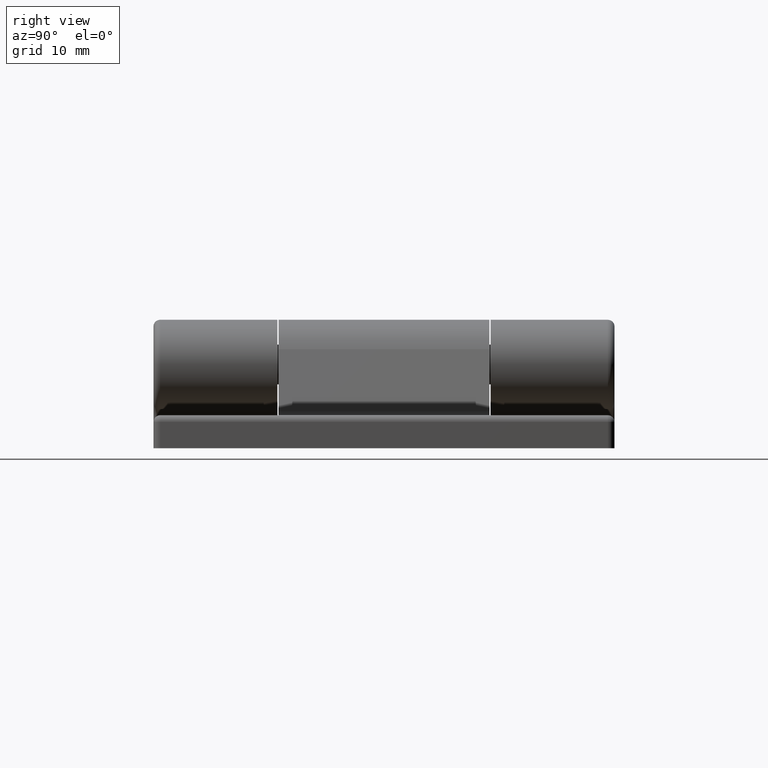
[diagram: clean part render]
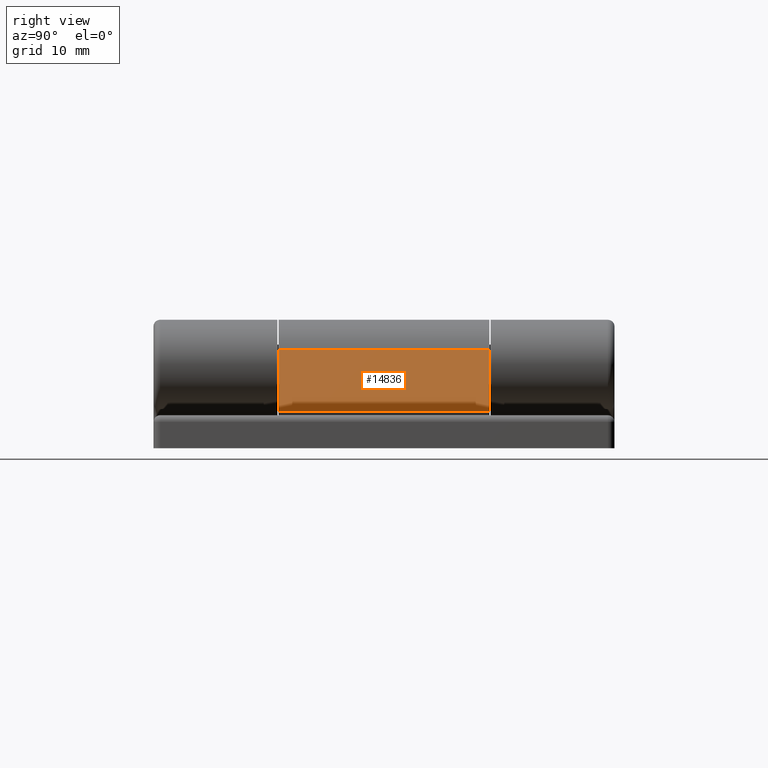
[diagram: same view with one face highlighted and labeled with its STEP entity id]
A machine part, right view. The second image highlights one B-rep face of the part: STEP entity #14836.
In plain terms, the highlighted planar face has unit normal (-0.9397, 0, -0.342).
Its self-contained STEP definition (entity closure, byte-faithful):
#1464 = CARTESIAN_POINT ( 'NONE',  ( -6.389909821344177843, -16.00000000000000355, 15.02573697461452795 ) ) ;
#1607 = ORIENTED_EDGE ( 'NONE', *, *, #14081, .F. ) ;
#1722 = DIRECTION ( 'NONE',  ( -0.3420201433256662704, 0.000000000000000000, -0.9396926207859093161 ) ) ;
#3150 = CARTESIAN_POINT ( 'NONE',  ( -9.799494574109727907, 16.00000000000000355, 5.657979856674334229 ) ) ;
#3185 = VERTEX_POINT ( 'NONE', #19499 ) ;
#3458 = VERTEX_POINT ( 'NONE', #27789 ) ;
#4214 = ORIENTED_EDGE ( 'NONE', *, *, #20995, .T. ) ;
#4560 = VECTOR ( 'NONE', #14997, 1000.000000000000000 ) ;
#8114 = CARTESIAN_POINT ( 'NONE',  ( -9.799494574109727907, -16.00000000000000355, 5.657979856674334229 ) ) ;
#11061 = VECTOR ( 'NONE', #11753, 1000.000000000000000 ) ;
#11509 = VECTOR ( 'NONE', #25163, 1000.000000000000114 ) ;
#11753 = DIRECTION ( 'NONE',  ( -0.000000000000000000, -1.000000000000000000, -0.000000000000000000 ) ) ;
#12076 = EDGE_CURVE ( 'NONE', #3185, #21088, #17814, .T. ) ;
#12123 = LINE ( 'NONE', #23095, #11061 ) ;
#13818 = CARTESIAN_POINT ( 'NONE',  ( -9.799494574109727907, 16.00000000000000355, 5.657979856674334229 ) ) ;
#14081 = EDGE_CURVE ( 'NONE', #18591, #3185, #18343, .T. ) ;
#14836 = ADVANCED_FACE ( 'NONE', ( #19900 ), #24778, .F. ) ;
#14997 = DIRECTION ( 'NONE',  ( -0.000000000000000000, -1.000000000000000000, -0.000000000000000000 ) ) ;
#15450 = DIRECTION ( 'NONE',  ( 0.9396926207859093161, 0.000000000000000000, -0.3420201433256662704 ) ) ;
#16358 = ORIENTED_EDGE ( 'NONE', *, *, #28427, .T. ) ;
#17814 = LINE ( 'NONE', #24053, #4560 ) ;
#18343 = LINE ( 'NONE', #13818, #11509 ) ;
#18591 = VERTEX_POINT ( 'NONE', #3150 ) ;
#19334 = DIRECTION ( 'NONE',  ( 0.3420201433256662704, 0.000000000000000000, 0.9396926207859092051 ) ) ;
#19499 = CARTESIAN_POINT ( 'NONE',  ( -6.389909821344177843, 16.00000000000000355, 15.02573697461452795 ) ) ;
#19885 = CARTESIAN_POINT ( 'NONE',  ( -9.799494574109727907, 35.00000000000000000, 5.657979856674334229 ) ) ;
#19900 = FACE_OUTER_BOUND ( 'NONE', #21614, .T. ) ;
#20346 = VECTOR ( 'NONE', #19334, 1000.000000000000114 ) ;
#20869 = AXIS2_PLACEMENT_3D ( 'NONE', #19885, #15450, #1722 ) ;
#20995 = EDGE_CURVE ( 'NONE', #3458, #21088, #23582, .T. ) ;
#21088 = VERTEX_POINT ( 'NONE', #1464 ) ;
#21614 = EDGE_LOOP ( 'NONE', ( #4214, #26645, #1607, #16358 ) ) ;
#23095 = CARTESIAN_POINT ( 'NONE',  ( -9.799494574109727907, 35.00000000000000000, 5.657979856674334229 ) ) ;
#23582 = LINE ( 'NONE', #8114, #20346 ) ;
#24053 = CARTESIAN_POINT ( 'NONE',  ( -6.389909821344177843, 35.00000000000000000, 15.02573697461452795 ) ) ;
#24778 = PLANE ( 'NONE',  #20869 ) ;
#25163 = DIRECTION ( 'NONE',  ( 0.3420201433256662704, 0.000000000000000000, 0.9396926207859092051 ) ) ;
#26645 = ORIENTED_EDGE ( 'NONE', *, *, #12076, .F. ) ;
#27789 = CARTESIAN_POINT ( 'NONE',  ( -9.799494574109727907, -16.00000000000000355, 5.657979856674334229 ) ) ;
#28427 = EDGE_CURVE ( 'NONE', #18591, #3458, #12123, .T. ) ;